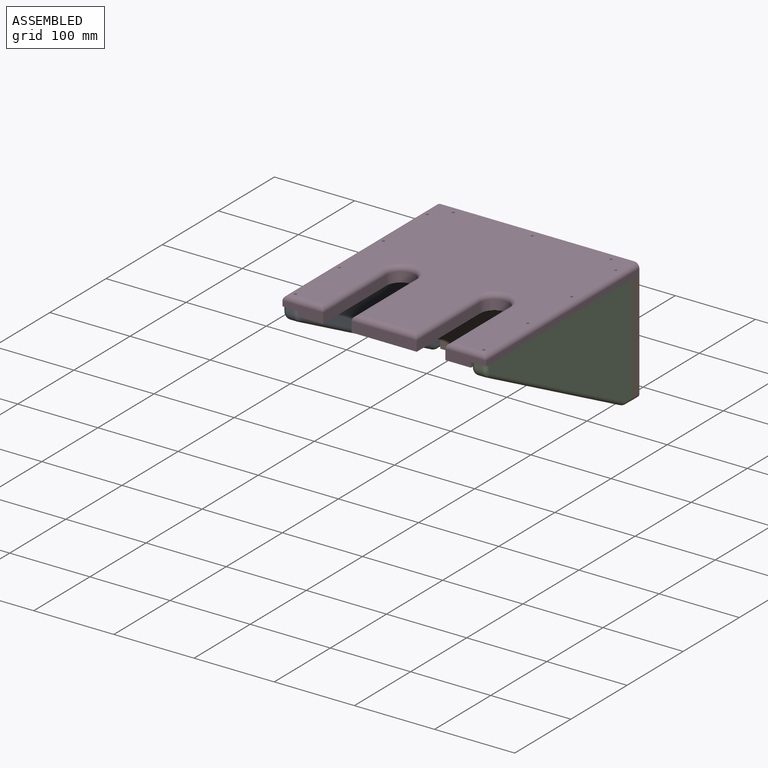
[diagram: assembled view]
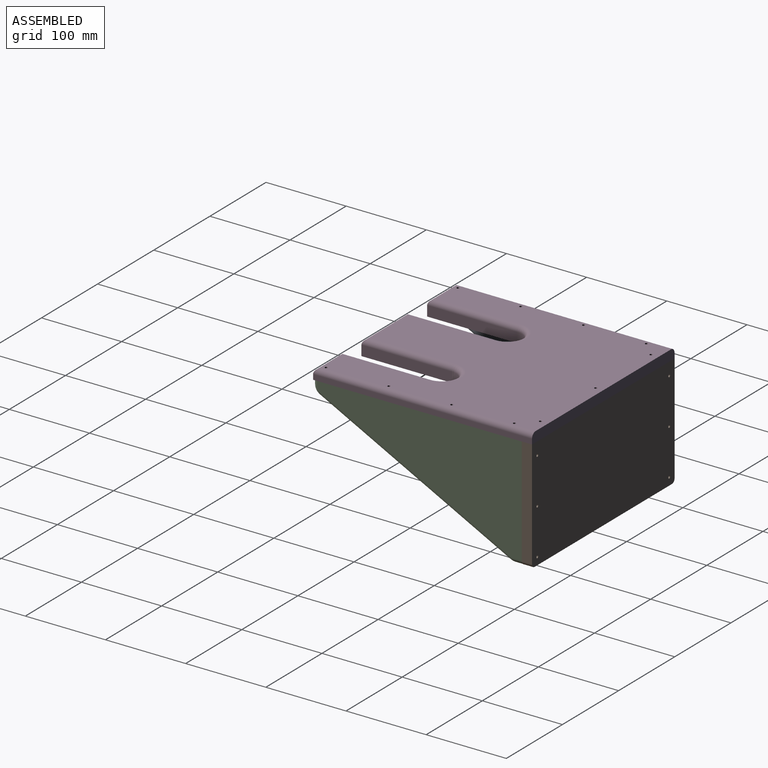
[diagram: assembled view, second angle]
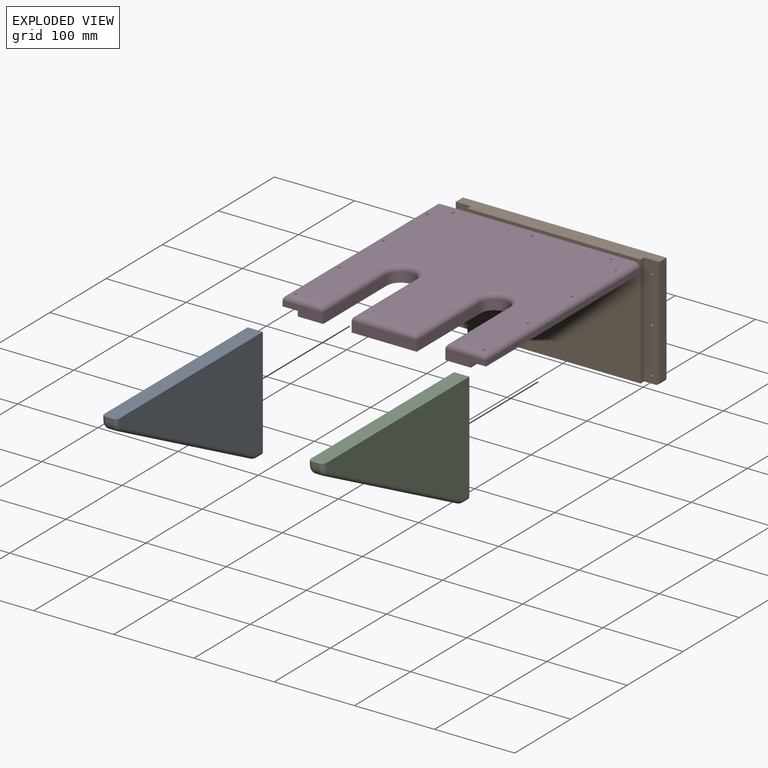
[diagram: exploded view]
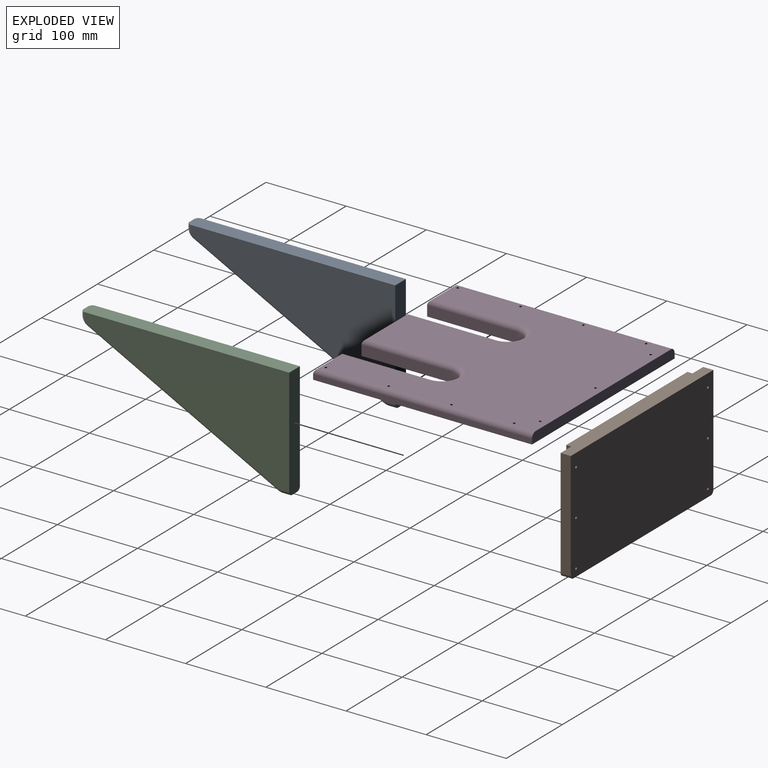
[diagram: exploded view, second angle]
ASSEMBLY  parts=4 mates=3
PART A: 19 faces, bbox 19.1x261.4x140.7 mm
  f0: cylinder r=12.7mm len=11.3mm, axis (-1,0,0), area 123.8mm2, adj f1,f6,f12,f17
  f1: plane 238.02x122.06mm, normal (0,-0.46,-0.89), area 2378mm2, adj f0,f2,f11,f16
  f2: cylinder r=12.7mm len=8.89mm, axis (-1,0,0), area 53.5mm2, adj f1,f3,f10,f15
  f3: plane 9.63x8.89mm, normal (0,0,-1), area 85.6mm2, adj f2,f4,f9,f14
  f4: plane 139.7x19.05mm, normal (0,1,0), area 2650.2mm2, adj f3,f5,f7,f8,f9,f14
  f5: plane 260.35x19.05mm, normal (0,0,1), area 4948.6mm2, adj f4,f6,f7,f8,f13,f18
  f6: plane 8.89x4.94mm, normal (0,-1,0), area 43.9mm2, adj f0,f5,f13,f18
  f7: plane 255.27x134.62mm, normal (1,0,0), area 19120.4mm2, adj f4,f5,f14,f15,f16,f17,f18
  f8: plane 255.27x134.62mm, normal (-1,0,0), area 19120.4mm2, adj f4,f5,f9,f10,f11,f12,f13
  f9: cylinder r=5.08mm len=9.63mm, axis (0,1,0), area 76.9mm2, adj f3,f4,f8,f10
  f10: torus R=7.62mm, axis (1,0,0), area 41mm2, adj f2,f8,f9,f11
  f11: cylinder r=5.08mm len=240.33mm, axis (0,0.89,-0.46), area 2134.5mm2, adj f1,f8,f10,f12
  f12: torus R=7.62mm, axis (1,0,0), area 95mm2, adj f0,f8,f11,f13
  f13: cylinder r=5.08mm len=5.08mm, axis (0,0,-1), area 39.4mm2, adj f5,f6,f8,f12
  f14: cylinder r=5.08mm len=9.63mm, axis (0,-1,0), area 76.9mm2, adj f3,f4,f7,f15
  f15: torus R=7.62mm, axis (1,0,0), area 41mm2, adj f2,f7,f14,f16
  f16: cylinder r=5.08mm len=240.33mm, axis (0,-0.89,0.46), area 2134.5mm2, adj f1,f7,f15,f17
  f17: torus R=7.62mm, axis (1,0,0), area 95mm2, adj f0,f7,f16,f18
  f18: cylinder r=5.08mm len=5.08mm, axis (0,0,1), area 39.4mm2, adj f5,f6,f7,f17
PART B: 18 faces, bbox 254x19.1x139.7 mm
  f0: plane 139.7x6.35mm, normal (1,0,0), area 887.1mm2, adj f1,f3,f4,f17
  f1: plane 254x19.05mm, normal (0,0,1), area 4596.8mm2, adj f0,f2,f4,f5,f6,f11,f14,f17
  f2: plane 139.7x6.35mm, normal (-1,0,0), area 887.1mm2, adj f1,f3,f4,f11
  f3: plane 244.63x19.05mm, normal (0,0,-1), area 4477.7mm2, adj f0,f2,f4,f5,f7,f11,f12,f17
  f4: plane 215.9x139.7mm, normal (0,-1,0), area 30161.2mm2, adj f0,f1,f2,f3
  f5: plane 254x139.7mm, normal (0,1,0), area 35426.9mm2, adj f1,f3,f6,f7,f8,f9,f10,f12
  f6: plane 135.01x12.7mm, normal (-1,0,0), area 1714.7mm2, adj f1,f5,f7,f11
  f7: cylinder r=4.69mm len=12.7mm, axis (0,1,0), area 93.5mm2, adj f3,f5,f6,f11
  f8: cylinder r=1.59mm len=12.7mm, axis (0,1,0), area 126.7mm2, adj f5,f11
  f9: cylinder r=1.59mm len=12.7mm, axis (0,1,0), area 126.7mm2, adj f5,f11
  f10: cylinder r=1.59mm len=12.7mm, axis (0,1,0), area 126.7mm2, adj f5,f11
  f11: plane 139.7x19.05mm, normal (0,-1,0), area 2632.8mm2, adj f1,f2,f3,f6,f7,f8,f9,f10
  f12: cylinder r=4.69mm len=12.7mm, axis (0,1,0), area 93.5mm2, adj f3,f5,f14,f17
  f13: cylinder r=1.59mm len=12.7mm, axis (0,1,0), area 126.7mm2, adj f5,f17
  f14: plane 135.01x12.7mm, normal (1,0,0), area 1714.7mm2, adj f1,f5,f12,f17
  f15: cylinder r=1.59mm len=12.7mm, axis (0,1,0), area 126.7mm2, adj f5,f17
  f16: cylinder r=1.59mm len=12.7mm, axis (0,1,0), area 126.7mm2, adj f5,f17
  f17: plane 139.7x19.05mm, normal (0,-1,0), area 2632.8mm2, adj f0,f1,f3,f12,f13,f14,f15,f16
PART C: same geometry as A
PART D: 62 faces, bbox 254x273.2x19.1 mm
  f0: plane 50.8x12.7mm, normal (0,-1,0), area 524.2mm2, adj f1,f11,f12,f14,f28,f59
  f1: plane 254x6.35mm, normal (1,0,0), area 1612.9mm2, adj f0,f2,f12,f28
  f2: plane 215.9x6.35mm, normal (0,1,0), area 1371mm2, adj f1,f3,f12,f28
  f3: plane 254x6.35mm, normal (-1,0,0), area 1612.9mm2, adj f2,f4,f12,f28
  f4: plane 50.8x12.7mm, normal (0,-1,0), area 524.2mm2, adj f3,f5,f12,f16,f28,f52
  f5: plane 112.78x12.7mm, normal (1,0,0), area 1432.4mm2, adj f4,f6,f12,f53
  f6: cylinder r=17.78mm len=35.56mm, axis (0,0,1), area 709.4mm2, adj f5,f7,f12,f54
  f7: plane 112.96x12.7mm, normal (-1,0,0), area 1434.6mm2, adj f6,f8,f12,f55
  f8: plane 81.28x12.7mm, normal (0,-1,0), area 1032.3mm2, adj f7,f9,f12,f56
  f9: plane 112.96x12.7mm, normal (1,0,0), area 1434.6mm2, adj f8,f10,f12,f58
  f10: cylinder r=17.78mm len=35.56mm, axis (0,0,1), area 709.4mm2, adj f9,f11,f12,f60
  f11: plane 112.78x12.7mm, normal (-1,0,0), area 1432.4mm2, adj f0,f10,f12,f61
  f12: plane 254.18x215.9mm, normal (0,0,-1), area 45838.9mm2, adj f0,f1,f2,f3,f4,f5,f6,f7
  f13: plane 266.88x241.3mm, normal (0,0,1), area 52177.8mm2, adj f15,f29,f31,f33,f35,f37,f39,f41
  f14: plane 273.05x6.35mm, normal (1,0,0), area 1733.9mm2, adj f0,f15,f28,f57
  f15: plane 254x12.7mm, normal (0,1,0), area 3208.5mm2, adj f13,f14,f16,f28,f51,f57
  f16: plane 273.05x6.35mm, normal (-1,0,0), area 1733.9mm2, adj f4,f15,f28,f51
  f17: cylinder r=4.25mm len=8.5mm, axis (0,0,1), area 205.6mm2, adj f28,f46
  f18: cylinder r=4.25mm len=8.5mm, axis (0,0,1), area 205.6mm2, adj f28,f40
  f19: cylinder r=4.25mm len=8.5mm, axis (0,0,1), area 205.6mm2, adj f28,f38
  f20: cylinder r=4.25mm len=8.5mm, axis (0,0,1), area 205.6mm2, adj f28,f36
  f21: cylinder r=4.25mm len=8.5mm, axis (0,0,1), area 205.6mm2, adj f28,f34
  f22: cylinder r=4.25mm len=8.5mm, axis (0,0,1), area 205.6mm2, adj f28,f32
  f23: cylinder r=4.25mm len=8.5mm, axis (0,0,1), area 205.6mm2, adj f28,f30
  f24: cylinder r=4.25mm len=8.5mm, axis (0,0,1), area 205.6mm2, adj f28,f42
  f25: cylinder r=4.25mm len=8.5mm, axis (0,0,1), area 205.6mm2, adj f28,f44
  f26: cylinder r=4.25mm len=8.5mm, axis (0,0,1), area 205.6mm2, adj f28,f48
  f27: cylinder r=4.25mm len=8.5mm, axis (0,0,1), area 205.6mm2, adj f28,f50
  f28: plane 273.05x254mm, normal (0,0,-1), area 13891.9mm2, adj f0,f1,f2,f3,f4,f14,f15,f16
  f29: cylinder r=1.59mm len=5mm, axis (0,0,1), area 49.9mm2, adj f13,f30
  f30: plane 8.5x8.5mm, normal (0,0,-1), area 48.8mm2, adj f23,f29
  f31: cylinder r=1.59mm len=5mm, axis (0,0,1), area 49.9mm2, adj f13,f32
  f32: plane 8.5x8.5mm, normal (0,0,-1), area 48.8mm2, adj f22,f31
  f33: cylinder r=1.59mm len=5mm, axis (0,0,1), area 49.9mm2, adj f13,f34
  f34: plane 8.5x8.5mm, normal (0,0,-1), area 48.8mm2, adj f21,f33
  f35: cylinder r=1.59mm len=5mm, axis (0,0,1), area 49.9mm2, adj f13,f36
  f36: plane 8.5x8.5mm, normal (0,0,-1), area 48.8mm2, adj f20,f35
  f37: cylinder r=1.59mm len=5mm, axis (0,0,1), area 49.9mm2, adj f13,f38
  f38: plane 8.5x8.5mm, normal (0,0,-1), area 48.8mm2, adj f19,f37
  f39: cylinder r=1.59mm len=5mm, axis (0,0,1), area 49.9mm2, adj f13,f40
  f40: plane 8.5x8.5mm, normal (0,0,-1), area 48.8mm2, adj f18,f39
  f41: cylinder r=1.59mm len=5mm, axis (0,0,1), area 49.9mm2, adj f13,f42
  f42: plane 8.5x8.5mm, normal (0,0,-1), area 48.8mm2, adj f24,f41
  f43: cylinder r=1.59mm len=5mm, axis (0,0,1), area 49.9mm2, adj f13,f44
  f44: plane 8.5x8.5mm, normal (0,0,-1), area 48.8mm2, adj f25,f43
  f45: cylinder r=1.59mm len=5mm, axis (0,0,1), area 49.9mm2, adj f13,f46
  f46: plane 8.5x8.5mm, normal (0,0,-1), area 48.8mm2, adj f17,f45
  f47: cylinder r=1.59mm len=5mm, axis (0,0,1), area 49.9mm2, adj f13,f48
  f48: plane 8.5x8.5mm, normal (0,0,-1), area 48.8mm2, adj f26,f47
  f49: cylinder r=1.59mm len=5mm, axis (0,0,1), area 49.9mm2, adj f13,f50
  f50: plane 8.5x8.5mm, normal (0,0,-1), area 48.8mm2, adj f27,f49
  f51: cylinder r=6.35mm len=273.05mm, axis (0,-1,0), area 2700.5mm2, adj f13,f15,f16,f52
  f52: cylinder r=6.35mm len=50.8mm, axis (1,0,0), area 460.7mm2, adj f4,f13,f51,f53
  f53: cylinder r=6.35mm len=112.78mm, axis (0,1,0), area 1102mm2, adj f5,f13,f52,f54
  f54: torus R=24.13mm, axis (0,0,1), area 629.5mm2, adj f6,f13,f53,f55
  f55: cylinder r=6.35mm len=112.96mm, axis (0,-1,0), area 1103.7mm2, adj f7,f13,f54,f56
  f56: cylinder r=6.35mm len=81.28mm, axis (1,0,0), area 764.7mm2, adj f8,f13,f55,f58
  f57: cylinder r=6.35mm len=273.05mm, axis (0,1,0), area 2700.5mm2, adj f13,f14,f15,f59
  f58: cylinder r=6.35mm len=112.96mm, axis (0,1,0), area 1103.7mm2, adj f9,f13,f56,f60
  f59: cylinder r=6.35mm len=50.8mm, axis (1,0,0), area 460.7mm2, adj f0,f13,f57,f61
  f60: torus R=24.13mm, axis (0,0,1), area 629.5mm2, adj f10,f13,f58,f61
  f61: cylinder r=6.35mm len=112.78mm, axis (0,-1,0), area 1102mm2, adj f11,f13,f59,f60
PLACE A t=(-34.59,-71.05,-180.53)mm
PLACE B t=(-62.53,265.57,-56.24)mm
PLACE C t=(200.36,-71.05,-180.53)mm
PLACE D t=(-53.64,-23.99,121.31)mm
MATE fastened C.f4 <-> B.f17  axis (0,1,0) through (209.89,252.87,108.61)mm
MATE fastened D.f28 <-> B.f1  axis (0,0,-1) through (92.41,265.57,108.61)mm
MATE fastened A.f4 <-> B.f11  axis (0,1,0) through (-25.06,252.87,108.61)mm
